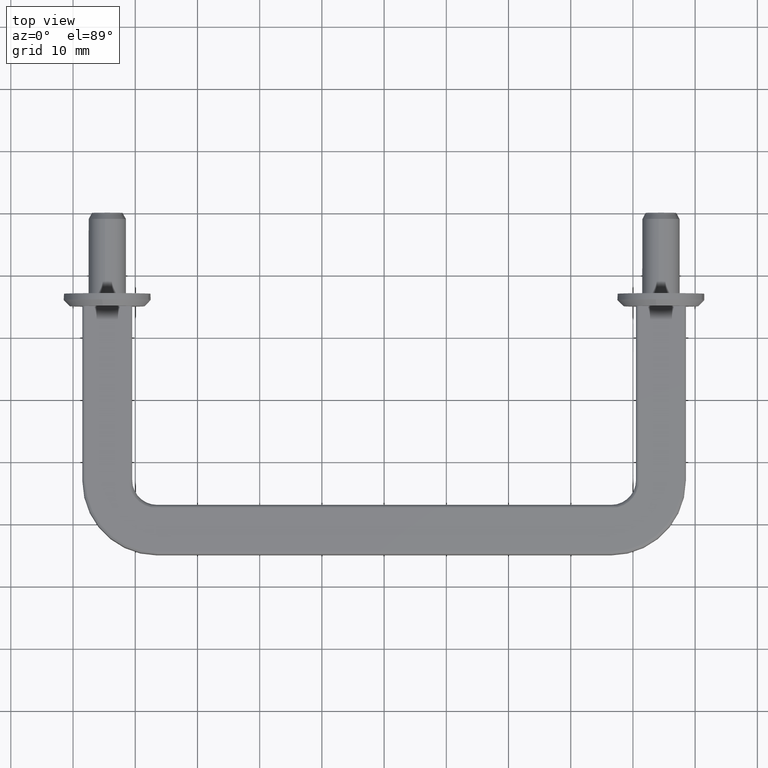
[diagram: clean part render]
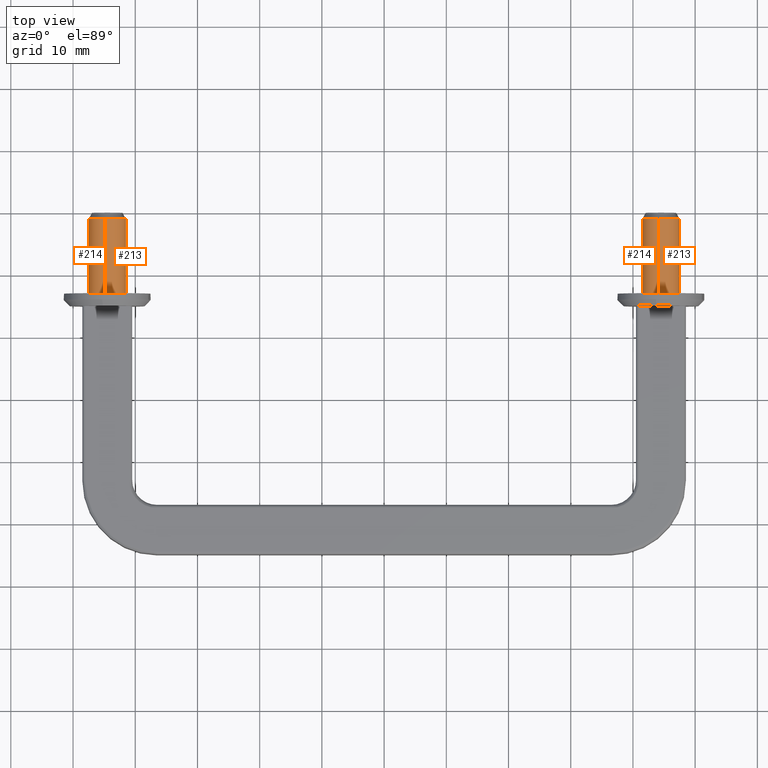
[diagram: same view with one multi-face feature highlighted, each face labeled with its STEP entity id]
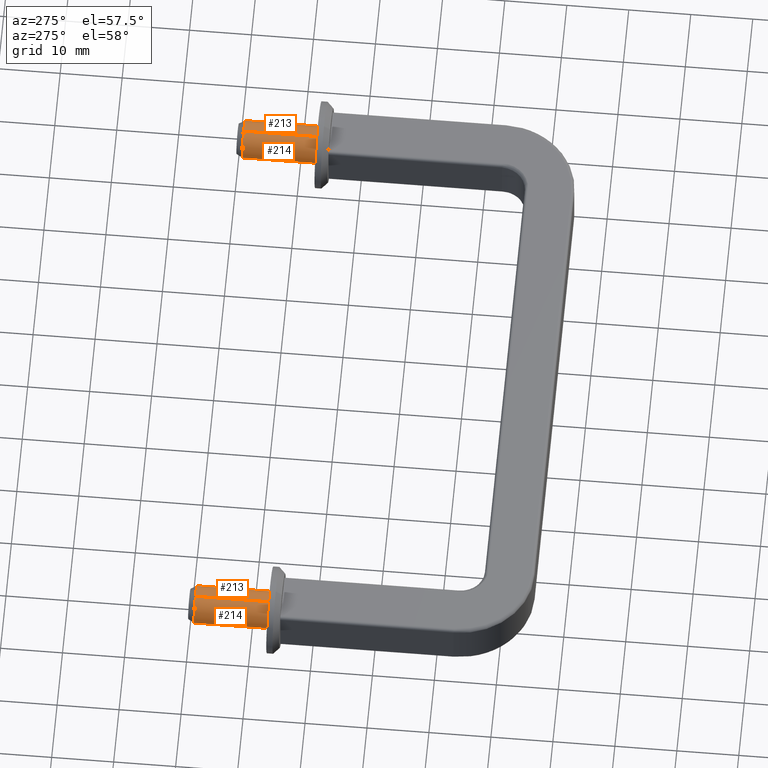
[diagram: same view with one multi-face feature highlighted, each face labeled with its STEP entity id]
A machine part, top view. The highlighted faces form ONE feature: a constant-radius fillet chain: 4 tangent blend faces with common blend radius 3 mm. The faces share edges in the B-rep.
A second angle (auxiliary view) of the same feature is appended — it is thin or edge-on in the first view.
Their STEP definitions:
[1] entity #213 (Cylinder):
#213=ADVANCED_FACE('',(#678),#677,.T.);
#677=CYLINDRICAL_SURFACE('',#1204,3.00000000000E+00);
#678=FACE_OUTER_BOUND('',#1205,.T.);
#1201=CARTESIAN_POINT('',(-4.45000000000E+01,-2.36602220870E-14,-4.00000000000E-01));
#1202=DIRECTION('',(-3.22916368607E-14,-3.24206325391E-15,-1.00000000000E+00));
#1203=DIRECTION('',(-1.18034234657E-01,9.93009526364E-01,5.92118946467E-16));
#1204=AXIS2_PLACEMENT_3D('',#1201,#1202,#1203);
#1205=EDGE_LOOP('',(#1438,#1439,#1440,#1441,#1442,#1443));
#1438=ORIENTED_EDGE('',*,*,#1561,.F.);
#1439=ORIENTED_EDGE('',*,*,#1560,.F.);
#1440=ORIENTED_EDGE('',*,*,#1568,.F.);
#1441=ORIENTED_EDGE('',*,*,#1569,.F.);
#1442=ORIENTED_EDGE('',*,*,#1558,.T.);
#1443=ORIENTED_EDGE('',*,*,#1570,.T.);
#1558=EDGE_CURVE('',#2282,#2283,#2284,.T.);
#1560=EDGE_CURVE('',#2296,#2297,#2298,.T.);
#1561=EDGE_CURVE('',#2297,#2304,#2305,.T.);
#1568=EDGE_CURVE('',#2344,#2296,#2351,.T.);
#1569=EDGE_CURVE('',#2282,#2344,#2357,.T.);
#1570=EDGE_CURVE('',#2283,#2304,#2363,.T.);
#2282=VERTEX_POINT('',#2814);
#2283=VERTEX_POINT('',#2815);
#2284=CIRCLE('',#2819,3.00000000000E+00);
#2296=VERTEX_POINT('',#2824);
#2297=VERTEX_POINT('',#2825);
#2298=CIRCLE('',#2829,2.99999999971E+00);
#2304=VERTEX_POINT('',#2830);
#2305=CIRCLE('',#2834,3.00000000024E+00);
#2344=VERTEX_POINT('',#2854);
#2351=CIRCLE('',#2862,3.00000000015E+00);
#2357=(BOUNDED_CURVE() B_SPLINE_CURVE(1,(#2863,#2864),.UNSPECIFIED.,.F.,.F.) B_SPLINE_CURVE_WITH_KNOTS((2,2),(8.33333328360E-02,9.16666666871E-01),.UNSPECIFIED.) CURVE() GEOMETRIC_REPRESENTATION_ITEM() RATIONAL_B_SPLINE_CURVE((1.00000000000E+00,1.00000000000E+00)) REPRESENTATION_ITEM('') );
#2363=(BOUNDED_CURVE() B_SPLINE_CURVE(1,(#2865,#2866),.UNSPECIFIED.,.F.,.F.) B_SPLINE_CURVE_WITH_KNOTS((2,2),(8.33333333333E-02,9.16666666665E-01),.UNSPECIFIED.) CURVE() GEOMETRIC_REPRESENTATION_ITEM() RATIONAL_B_SPLINE_CURVE((7.50000000000E-01,7.50000000000E-01)) REPRESENTATION_ITEM('') );
#2814=CARTESIAN_POINT('',(-4.48541027040E+01,2.97902857909E+00,1.50000000000E+01));
#2815=CARTESIAN_POINT('',(-4.41458983854E+01,-2.97902870858E+00,1.50000000000E+01));
#2816=CARTESIAN_POINT('',(-4.45000000000E+01,5.55111512313E-15,1.50000000000E+01));
#2817=DIRECTION('',(1.77635683940E-15,2.22936079974E-16,-1.00000000000E+00));
#2818=DIRECTION('',(1.18033871519E-01,-9.93009569528E-01,-1.17073858537E-17));
#2819=AXIS2_PLACEMENT_3D('',#2816,#2817,#2818);
#2824=CARTESIAN_POINT('',(-4.19708798535E+01,1.61355238053E+00,1.00000000002E+00));
#2825=CARTESIAN_POINT('',(-4.15000000000E+01,0.00000000000E+00,1.00000000000E+00));
#2826=CARTESIAN_POINT('',(-4.44999999997E+01,1.06260555910E-10,1.00000000013E+00));
#2827=DIRECTION('',(-4.41086401401E-11,2.45914498269E-16,-1.00000000000E+00));
#2828=DIRECTION('',(-8.43040048812E-01,-5.37850793528E-01,3.71852178715E-11));
#2829=AXIS2_PLACEMENT_3D('',#2826,#2827,#2828);
#2830=CARTESIAN_POINT('',(-4.41458662402E+01,-2.97902488750E+00,1.00000000006E+00));
#2831=CARTESIAN_POINT('',(-4.45000000002E+01,1.90025772895E-10,1.00000000007E+00));
#2832=DIRECTION('',(-2.40107193367E-11,1.52106932211E-21,-1.00000000000E+00));
#2833=DIRECTION('',(-1.00000000000E+00,6.33418018284E-11,2.40107193367E-11));
#2834=AXIS2_PLACEMENT_3D('',#2831,#2832,#2833);
#2854=CARTESIAN_POINT('',(-4.48541027043E+01,2.97902857905E+00,1.00000000000E+00));
#2859=CARTESIAN_POINT('',(-4.45000000001E+01,-1.60696345120E-10,1.00000000004E+00));
#2860=DIRECTION('',(1.72643909289E-12,-1.45243493943E-11,-1.00000000000E+00));
#2861=DIRECTION('',(1.18034234744E-01,-9.93009526353E-01,1.46265962297E-11));
#2862=AXIS2_PLACEMENT_3D('',#2859,#2860,#2861);
#2863=CARTESIAN_POINT('',(-4.48541027040E+01,2.97902857909E+00,1.50000000084E+01));
#2864=CARTESIAN_POINT('',(-4.48541027040E+01,2.97902857909E+00,9.99999996573E-01));
#2865=CARTESIAN_POINT('',(-4.41458972960E+01,-2.97902857909E+00,1.50000000000E+01));
#2866=CARTESIAN_POINT('',(-4.41458972960E+01,-2.97902857909E+00,1.00000000003E+00));
[2] entity #214 (Cylinder):
#214=ADVANCED_FACE('',(#688),#687,.T.);
#687=CYLINDRICAL_SURFACE('',#1209,3.00000000000E+00);
#688=FACE_OUTER_BOUND('',#1210,.T.);
#1206=CARTESIAN_POINT('',(-4.45000000000E+01,-2.36602220870E-14,-4.00000000000E-01));
#1207=DIRECTION('',(-3.22916368607E-14,-3.24206325391E-15,-1.00000000000E+00));
#1208=DIRECTION('',(-1.18034234657E-01,9.93009526364E-01,5.92118946467E-16));
#1209=AXIS2_PLACEMENT_3D('',#1206,#1207,#1208);
#1210=EDGE_LOOP('',(#1444,#1445,#1446,#1447,#1448,#1449,#1450));
#1444=ORIENTED_EDGE('',*,*,#1559,.T.);
#1445=ORIENTED_EDGE('',*,*,#1569,.T.);
#1446=ORIENTED_EDGE('',*,*,#1567,.F.);
#1447=ORIENTED_EDGE('',*,*,#1564,.F.);
#1448=ORIENTED_EDGE('',*,*,#1563,.F.);
#1449=ORIENTED_EDGE('',*,*,#1562,.F.);
#1450=ORIENTED_EDGE('',*,*,#1570,.F.);
#1559=EDGE_CURVE('',#2283,#2282,#2290,.T.);
#1562=EDGE_CURVE('',#2304,#2311,#2312,.T.);
#1563=EDGE_CURVE('',#2311,#2318,#2319,.T.);
#1564=EDGE_CURVE('',#2318,#2325,#2326,.T.);
#1567=EDGE_CURVE('',#2325,#2344,#2345,.T.);
#1569=EDGE_CURVE('',#2282,#2344,#2357,.T.);
#1570=EDGE_CURVE('',#2283,#2304,#2363,.T.);
#2282=VERTEX_POINT('',#2814);
#2283=VERTEX_POINT('',#2815);
#2290=CIRCLE('',#2823,3.00000000000E+00);
#2304=VERTEX_POINT('',#2830);
#2311=VERTEX_POINT('',#2835);
#2312=CIRCLE('',#2839,3.00000000024E+00);
#2318=VERTEX_POINT('',#2840);
#2319=CIRCLE('',#2844,3.00000022226E+00);
#2325=VERTEX_POINT('',#2845);
#2326=CIRCLE('',#2849,3.00000000000E+00);
#2344=VERTEX_POINT('',#2854);
#2345=CIRCLE('',#2858,3.00000000000E+00);
#2357=(BOUNDED_CURVE() B_SPLINE_CURVE(1,(#2863,#2864),.UNSPECIFIED.,.F.,.F.) B_SPLINE_CURVE_WITH_KNOTS((2,2),(8.33333328360E-02,9.16666666871E-01),.UNSPECIFIED.) CURVE() GEOMETRIC_REPRESENTATION_ITEM() RATIONAL_B_SPLINE_CURVE((1.00000000000E+00,1.00000000000E+00)) REPRESENTATION_ITEM('') );
#2363=(BOUNDED_CURVE() B_SPLINE_CURVE(1,(#2865,#2866),.UNSPECIFIED.,.F.,.F.) B_SPLINE_CURVE_WITH_KNOTS((2,2),(8.33333333333E-02,9.16666666665E-01),.UNSPECIFIED.) CURVE() GEOMETRIC_REPRESENTATION_ITEM() RATIONAL_B_SPLINE_CURVE((7.50000000000E-01,7.50000000000E-01)) REPRESENTATION_ITEM('') );
#2814=CARTESIAN_POINT('',(-4.48541027040E+01,2.97902857909E+00,1.50000000000E+01));
#2815=CARTESIAN_POINT('',(-4.41458983854E+01,-2.97902870858E+00,1.50000000000E+01));
#2820=CARTESIAN_POINT('',(-4.45000000000E+01,5.55111512313E-15,1.50000000000E+01));
#2821=DIRECTION('',(1.77635683940E-15,2.22936079974E-16,-1.00000000000E+00));
#2822=DIRECTION('',(1.18033871519E-01,-9.93009569528E-01,-1.17073858537E-17));
#2823=AXIS2_PLACEMENT_3D('',#2820,#2821,#2822);
#2830=CARTESIAN_POINT('',(-4.41458662402E+01,-2.97902488750E+00,1.00000000006E+00));
#2835=CARTESIAN_POINT('',(-4.42646227124E+01,-2.99075200121E+00,1.00000000007E+00));
#2836=CARTESIAN_POINT('',(-4.45000000002E+01,1.90025772895E-10,1.00000000007E+00));
#2837=DIRECTION('',(-2.40107193367E-11,1.52106932211E-21,-1.00000000000E+00));
#2838=DIRECTION('',(-1.00000000000E+00,6.33418018284E-11,2.40107193367E-11));
#2839=AXIS2_PLACEMENT_3D('',#2836,#2837,#2838);
#2840=CARTESIAN_POINT('',(-4.43168543813E+01,-2.99440439526E+00,1.00000000000E+00));
#2841=CARTESIAN_POINT('',(-4.45000000134E+01,2.21857595406E-07,1.00000043583E+00));
#2842=DIRECTION('',(-8.86901163581E-09,1.45007240237E-07,-1.00000000000E+00));
#2843=DIRECTION('',(-7.84590945198E-02,9.96917333828E-01,1.45256085945E-07));
#2844=AXIS2_PLACEMENT_3D('',#2841,#2842,#2843);
#2845=CARTESIAN_POINT('',(-4.70291197259E+01,-1.61355303973E+00,1.00000000000E+00));
#2846=CARTESIAN_POINT('',(-4.45000000000E+01,-1.34114941375E-13,1.00000000000E+00));
#2847=DIRECTION('',(0.00000000000E+00,0.00000000000E+00,-1.00000000000E+00));
#2848=DIRECTION('',(-6.10485395732E-02,9.98134798420E-01,-0.00000000000E+00));
#2849=AXIS2_PLACEMENT_3D('',#2846,#2847,#2848);
#2854=CARTESIAN_POINT('',(-4.48541027043E+01,2.97902857905E+00,1.00000000000E+00));
#2855=CARTESIAN_POINT('',(-4.45000000000E+01,-1.34114941375E-13,1.00000000000E+00));
#2856=DIRECTION('',(0.00000000000E+00,0.00000000000E+00,-1.00000000000E+00));
#2857=DIRECTION('',(-6.10485395732E-02,9.98134798420E-01,-0.00000000000E+00));
#2858=AXIS2_PLACEMENT_3D('',#2855,#2856,#2857);
#2863=CARTESIAN_POINT('',(-4.48541027040E+01,2.97902857909E+00,1.50000000084E+01));
#2864=CARTESIAN_POINT('',(-4.48541027040E+01,2.97902857909E+00,9.99999996573E-01));
#2865=CARTESIAN_POINT('',(-4.41458972960E+01,-2.97902857909E+00,1.50000000000E+01));
#2866=CARTESIAN_POINT('',(-4.41458972960E+01,-2.97902857909E+00,1.00000000003E+00));
[3] entity #214 (Cylinder):
#214=ADVANCED_FACE('',(#688),#687,.T.);
#687=CYLINDRICAL_SURFACE('',#1209,3.00000000000E+00);
#688=FACE_OUTER_BOUND('',#1210,.T.);
#1206=CARTESIAN_POINT('',(-4.45000000000E+01,-2.36602220870E-14,-4.00000000000E-01));
#1207=DIRECTION('',(-3.22916368607E-14,-3.24206325391E-15,-1.00000000000E+00));
#1208=DIRECTION('',(-1.18034234657E-01,9.93009526364E-01,5.92118946467E-16));
#1209=AXIS2_PLACEMENT_3D('',#1206,#1207,#1208);
#1210=EDGE_LOOP('',(#1444,#1445,#1446,#1447,#1448,#1449,#1450));
#1444=ORIENTED_EDGE('',*,*,#1559,.T.);
#1445=ORIENTED_EDGE('',*,*,#1569,.T.);
#1446=ORIENTED_EDGE('',*,*,#1567,.F.);
#1447=ORIENTED_EDGE('',*,*,#1564,.F.);
#1448=ORIENTED_EDGE('',*,*,#1563,.F.);
#1449=ORIENTED_EDGE('',*,*,#1562,.F.);
#1450=ORIENTED_EDGE('',*,*,#1570,.F.);
#1559=EDGE_CURVE('',#2283,#2282,#2290,.T.);
#1562=EDGE_CURVE('',#2304,#2311,#2312,.T.);
#1563=EDGE_CURVE('',#2311,#2318,#2319,.T.);
#1564=EDGE_CURVE('',#2318,#2325,#2326,.T.);
#1567=EDGE_CURVE('',#2325,#2344,#2345,.T.);
#1569=EDGE_CURVE('',#2282,#2344,#2357,.T.);
#1570=EDGE_CURVE('',#2283,#2304,#2363,.T.);
#2282=VERTEX_POINT('',#2814);
#2283=VERTEX_POINT('',#2815);
#2290=CIRCLE('',#2823,3.00000000000E+00);
#2304=VERTEX_POINT('',#2830);
#2311=VERTEX_POINT('',#2835);
#2312=CIRCLE('',#2839,3.00000000024E+00);
#2318=VERTEX_POINT('',#2840);
#2319=CIRCLE('',#2844,3.00000022226E+00);
#2325=VERTEX_POINT('',#2845);
#2326=CIRCLE('',#2849,3.00000000000E+00);
#2344=VERTEX_POINT('',#2854);
#2345=CIRCLE('',#2858,3.00000000000E+00);
#2357=(BOUNDED_CURVE() B_SPLINE_CURVE(1,(#2863,#2864),.UNSPECIFIED.,.F.,.F.) B_SPLINE_CURVE_WITH_KNOTS((2,2),(8.33333328360E-02,9.16666666871E-01),.UNSPECIFIED.) CURVE() GEOMETRIC_REPRESENTATION_ITEM() RATIONAL_B_SPLINE_CURVE((1.00000000000E+00,1.00000000000E+00)) REPRESENTATION_ITEM('') );
#2363=(BOUNDED_CURVE() B_SPLINE_CURVE(1,(#2865,#2866),.UNSPECIFIED.,.F.,.F.) B_SPLINE_CURVE_WITH_KNOTS((2,2),(8.33333333333E-02,9.16666666665E-01),.UNSPECIFIED.) CURVE() GEOMETRIC_REPRESENTATION_ITEM() RATIONAL_B_SPLINE_CURVE((7.50000000000E-01,7.50000000000E-01)) REPRESENTATION_ITEM('') );
#2814=CARTESIAN_POINT('',(-4.48541027040E+01,2.97902857909E+00,1.50000000000E+01));
#2815=CARTESIAN_POINT('',(-4.41458983854E+01,-2.97902870858E+00,1.50000000000E+01));
#2820=CARTESIAN_POINT('',(-4.45000000000E+01,5.55111512313E-15,1.50000000000E+01));
#2821=DIRECTION('',(1.77635683940E-15,2.22936079974E-16,-1.00000000000E+00));
#2822=DIRECTION('',(1.18033871519E-01,-9.93009569528E-01,-1.17073858537E-17));
#2823=AXIS2_PLACEMENT_3D('',#2820,#2821,#2822);
#2830=CARTESIAN_POINT('',(-4.41458662402E+01,-2.97902488750E+00,1.00000000006E+00));
#2835=CARTESIAN_POINT('',(-4.42646227124E+01,-2.99075200121E+00,1.00000000007E+00));
#2836=CARTESIAN_POINT('',(-4.45000000002E+01,1.90025772895E-10,1.00000000007E+00));
#2837=DIRECTION('',(-2.40107193367E-11,1.52106932211E-21,-1.00000000000E+00));
#2838=DIRECTION('',(-1.00000000000E+00,6.33418018284E-11,2.40107193367E-11));
#2839=AXIS2_PLACEMENT_3D('',#2836,#2837,#2838);
#2840=CARTESIAN_POINT('',(-4.43168543813E+01,-2.99440439526E+00,1.00000000000E+00));
#2841=CARTESIAN_POINT('',(-4.45000000134E+01,2.21857595406E-07,1.00000043583E+00));
#2842=DIRECTION('',(-8.86901163581E-09,1.45007240237E-07,-1.00000000000E+00));
#2843=DIRECTION('',(-7.84590945198E-02,9.96917333828E-01,1.45256085945E-07));
#2844=AXIS2_PLACEMENT_3D('',#2841,#2842,#2843);
#2845=CARTESIAN_POINT('',(-4.70291197259E+01,-1.61355303973E+00,1.00000000000E+00));
#2846=CARTESIAN_POINT('',(-4.45000000000E+01,-1.34114941375E-13,1.00000000000E+00));
#2847=DIRECTION('',(0.00000000000E+00,0.00000000000E+00,-1.00000000000E+00));
#2848=DIRECTION('',(-6.10485395732E-02,9.98134798420E-01,-0.00000000000E+00));
#2849=AXIS2_PLACEMENT_3D('',#2846,#2847,#2848);
#2854=CARTESIAN_POINT('',(-4.48541027043E+01,2.97902857905E+00,1.00000000000E+00));
#2855=CARTESIAN_POINT('',(-4.45000000000E+01,-1.34114941375E-13,1.00000000000E+00));
#2856=DIRECTION('',(0.00000000000E+00,0.00000000000E+00,-1.00000000000E+00));
#2857=DIRECTION('',(-6.10485395732E-02,9.98134798420E-01,-0.00000000000E+00));
#2858=AXIS2_PLACEMENT_3D('',#2855,#2856,#2857);
#2863=CARTESIAN_POINT('',(-4.48541027040E+01,2.97902857909E+00,1.50000000084E+01));
#2864=CARTESIAN_POINT('',(-4.48541027040E+01,2.97902857909E+00,9.99999996573E-01));
#2865=CARTESIAN_POINT('',(-4.41458972960E+01,-2.97902857909E+00,1.50000000000E+01));
#2866=CARTESIAN_POINT('',(-4.41458972960E+01,-2.97902857909E+00,1.00000000003E+00));
[4] entity #213 (Cylinder):
#213=ADVANCED_FACE('',(#678),#677,.T.);
#677=CYLINDRICAL_SURFACE('',#1204,3.00000000000E+00);
#678=FACE_OUTER_BOUND('',#1205,.T.);
#1201=CARTESIAN_POINT('',(-4.45000000000E+01,-2.36602220870E-14,-4.00000000000E-01));
#1202=DIRECTION('',(-3.22916368607E-14,-3.24206325391E-15,-1.00000000000E+00));
#1203=DIRECTION('',(-1.18034234657E-01,9.93009526364E-01,5.92118946467E-16));
#1204=AXIS2_PLACEMENT_3D('',#1201,#1202,#1203);
#1205=EDGE_LOOP('',(#1438,#1439,#1440,#1441,#1442,#1443));
#1438=ORIENTED_EDGE('',*,*,#1561,.F.);
#1439=ORIENTED_EDGE('',*,*,#1560,.F.);
#1440=ORIENTED_EDGE('',*,*,#1568,.F.);
#1441=ORIENTED_EDGE('',*,*,#1569,.F.);
#1442=ORIENTED_EDGE('',*,*,#1558,.T.);
#1443=ORIENTED_EDGE('',*,*,#1570,.T.);
#1558=EDGE_CURVE('',#2282,#2283,#2284,.T.);
#1560=EDGE_CURVE('',#2296,#2297,#2298,.T.);
#1561=EDGE_CURVE('',#2297,#2304,#2305,.T.);
#1568=EDGE_CURVE('',#2344,#2296,#2351,.T.);
#1569=EDGE_CURVE('',#2282,#2344,#2357,.T.);
#1570=EDGE_CURVE('',#2283,#2304,#2363,.T.);
#2282=VERTEX_POINT('',#2814);
#2283=VERTEX_POINT('',#2815);
#2284=CIRCLE('',#2819,3.00000000000E+00);
#2296=VERTEX_POINT('',#2824);
#2297=VERTEX_POINT('',#2825);
#2298=CIRCLE('',#2829,2.99999999971E+00);
#2304=VERTEX_POINT('',#2830);
#2305=CIRCLE('',#2834,3.00000000024E+00);
#2344=VERTEX_POINT('',#2854);
#2351=CIRCLE('',#2862,3.00000000015E+00);
#2357=(BOUNDED_CURVE() B_SPLINE_CURVE(1,(#2863,#2864),.UNSPECIFIED.,.F.,.F.) B_SPLINE_CURVE_WITH_KNOTS((2,2),(8.33333328360E-02,9.16666666871E-01),.UNSPECIFIED.) CURVE() GEOMETRIC_REPRESENTATION_ITEM() RATIONAL_B_SPLINE_CURVE((1.00000000000E+00,1.00000000000E+00)) REPRESENTATION_ITEM('') );
#2363=(BOUNDED_CURVE() B_SPLINE_CURVE(1,(#2865,#2866),.UNSPECIFIED.,.F.,.F.) B_SPLINE_CURVE_WITH_KNOTS((2,2),(8.33333333333E-02,9.16666666665E-01),.UNSPECIFIED.) CURVE() GEOMETRIC_REPRESENTATION_ITEM() RATIONAL_B_SPLINE_CURVE((7.50000000000E-01,7.50000000000E-01)) REPRESENTATION_ITEM('') );
#2814=CARTESIAN_POINT('',(-4.48541027040E+01,2.97902857909E+00,1.50000000000E+01));
#2815=CARTESIAN_POINT('',(-4.41458983854E+01,-2.97902870858E+00,1.50000000000E+01));
#2816=CARTESIAN_POINT('',(-4.45000000000E+01,5.55111512313E-15,1.50000000000E+01));
#2817=DIRECTION('',(1.77635683940E-15,2.22936079974E-16,-1.00000000000E+00));
#2818=DIRECTION('',(1.18033871519E-01,-9.93009569528E-01,-1.17073858537E-17));
#2819=AXIS2_PLACEMENT_3D('',#2816,#2817,#2818);
#2824=CARTESIAN_POINT('',(-4.19708798535E+01,1.61355238053E+00,1.00000000002E+00));
#2825=CARTESIAN_POINT('',(-4.15000000000E+01,0.00000000000E+00,1.00000000000E+00));
#2826=CARTESIAN_POINT('',(-4.44999999997E+01,1.06260555910E-10,1.00000000013E+00));
#2827=DIRECTION('',(-4.41086401401E-11,2.45914498269E-16,-1.00000000000E+00));
#2828=DIRECTION('',(-8.43040048812E-01,-5.37850793528E-01,3.71852178715E-11));
#2829=AXIS2_PLACEMENT_3D('',#2826,#2827,#2828);
#2830=CARTESIAN_POINT('',(-4.41458662402E+01,-2.97902488750E+00,1.00000000006E+00));
#2831=CARTESIAN_POINT('',(-4.45000000002E+01,1.90025772895E-10,1.00000000007E+00));
#2832=DIRECTION('',(-2.40107193367E-11,1.52106932211E-21,-1.00000000000E+00));
#2833=DIRECTION('',(-1.00000000000E+00,6.33418018284E-11,2.40107193367E-11));
#2834=AXIS2_PLACEMENT_3D('',#2831,#2832,#2833);
#2854=CARTESIAN_POINT('',(-4.48541027043E+01,2.97902857905E+00,1.00000000000E+00));
#2859=CARTESIAN_POINT('',(-4.45000000001E+01,-1.60696345120E-10,1.00000000004E+00));
#2860=DIRECTION('',(1.72643909289E-12,-1.45243493943E-11,-1.00000000000E+00));
#2861=DIRECTION('',(1.18034234744E-01,-9.93009526353E-01,1.46265962297E-11));
#2862=AXIS2_PLACEMENT_3D('',#2859,#2860,#2861);
#2863=CARTESIAN_POINT('',(-4.48541027040E+01,2.97902857909E+00,1.50000000084E+01));
#2864=CARTESIAN_POINT('',(-4.48541027040E+01,2.97902857909E+00,9.99999996573E-01));
#2865=CARTESIAN_POINT('',(-4.41458972960E+01,-2.97902857909E+00,1.50000000000E+01));
#2866=CARTESIAN_POINT('',(-4.41458972960E+01,-2.97902857909E+00,1.00000000003E+00));